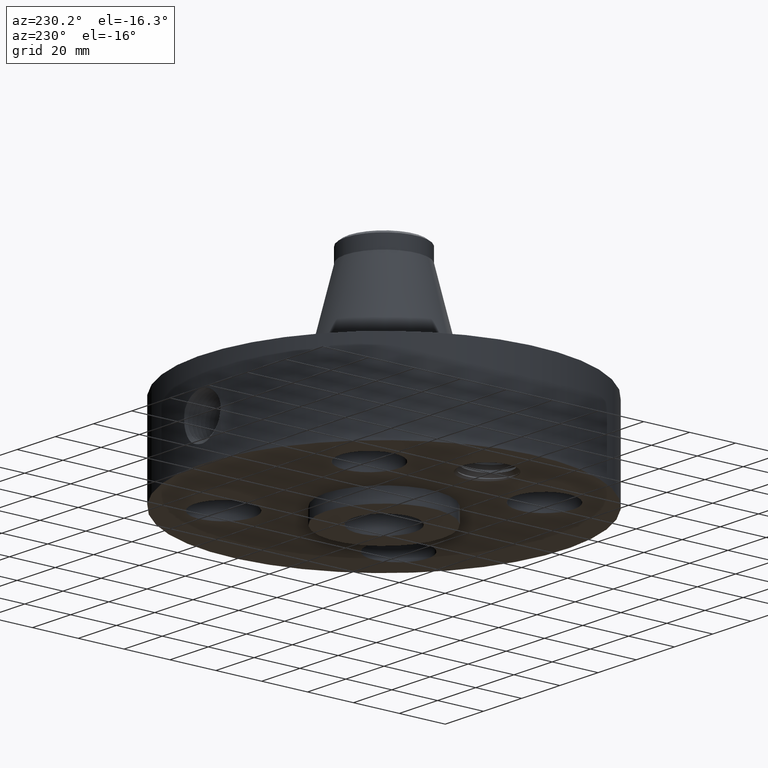
[diagram: clean part render]
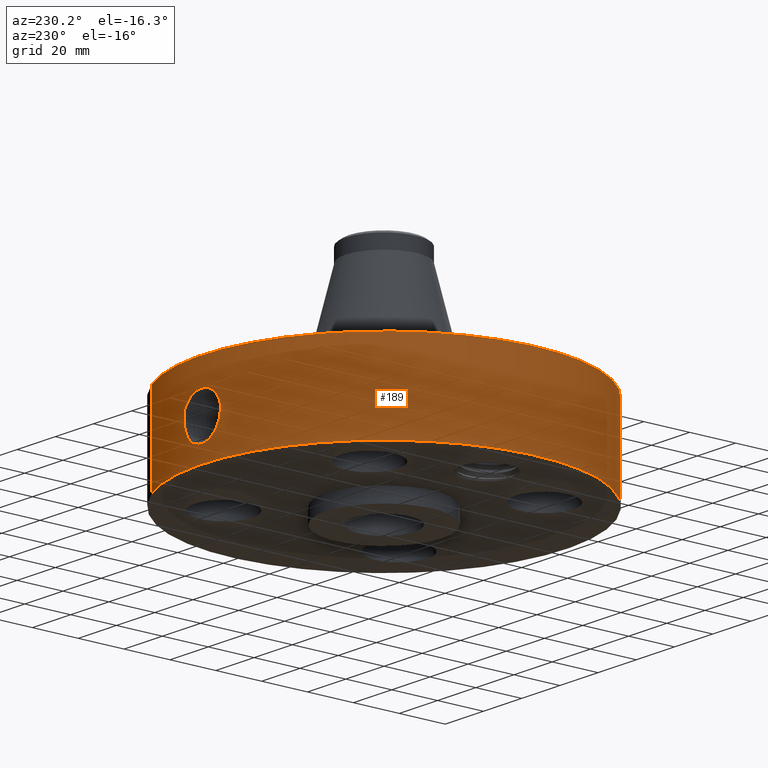
[diagram: same view with one face highlighted and labeled with its STEP entity id]
A machine part, auxiliary view. The second image highlights one B-rep face of the part: STEP entity #189.
In plain terms, the highlighted cylindrical surface (partial cylindrical patch) has radius 79.375 mm, axis along (0, 0, -1).
Its self-contained STEP definition (entity closure, byte-faithful):
#38=AXIS2_PLACEMENT_3D('Cylinder Axis2P3D',#35,#36,#37) ;
#42=AXIS2_PLACEMENT_3D('Circle Axis2P3D',#40,#41,$) ;
#58=AXIS2_PLACEMENT_3D('Circle Axis2P3D',#56,#57,$) ;
#35=CARTESIAN_POINT('Axis2P3D Location',(0.,0.,1.93500000001)) ;
#40=CARTESIAN_POINT('Axis2P3D Location',(0.,0.,0.250000000001)) ;
#44=CARTESIAN_POINT('Vertex',(-1.49820480814,-2.74244550592,0.250000000001)) ;
#46=CARTESIAN_POINT('Vertex',(1.49820480814,2.74244550592,0.250000000001)) ;
#49=CARTESIAN_POINT('Line Origine',(-1.49820480814,-2.74244550592,1.)) ;
#53=CARTESIAN_POINT('Vertex',(-1.49820480814,-2.74244550592,1.75000000001)) ;
#56=CARTESIAN_POINT('Axis2P3D Location',(0.,0.,1.75000000001)) ;
#60=CARTESIAN_POINT('Vertex',(1.49820480814,2.74244550592,1.75000000001)) ;
#63=CARTESIAN_POINT('Line Origine',(1.49820480814,2.74244550592,1.)) ;
#75=CARTESIAN_POINT('Control Point',(-0.169704717538,3.1203886471,1.25064240177)) ;
#76=CARTESIAN_POINT('Control Point',(-0.131083897928,3.12248906984,1.27181584559)) ;
#77=CARTESIAN_POINT('Control Point',(-0.0889131026666,3.12414682281,1.28658641962)) ;
#78=CARTESIAN_POINT('Control Point',(-0.0448186296726,3.1249897837,1.29402879621)) ;
#79=CARTESIAN_POINT('Control Point',(-0.000718090177373,3.12499991751,1.2941184944)) ;
#80=CARTESIAN_POINT('Vertex',(-0.169704717538,3.1203886471,1.25064240177)) ;
#82=CARTESIAN_POINT('Vertex',(-0.000717741474434,3.12499991759,1.29411850437)) ;
#86=CARTESIAN_POINT('Control Point',(-0.21482816623,3.11760707259,1.22122183656)) ;
#87=CARTESIAN_POINT('Control Point',(-0.200567304466,3.1185897605,1.23215449373)) ;
#88=CARTESIAN_POINT('Control Point',(-0.185468727421,3.11953130939,1.24199995501)) ;
#89=CARTESIAN_POINT('Control Point',(-0.169704717538,3.1203886471,1.25064240177)) ;
#90=CARTESIAN_POINT('Vertex',(-0.214819345972,3.11760742907,1.22122858909)) ;
#94=CARTESIAN_POINT('Control Point',(-0.34931949655,3.1054147693,0.885751642197)) ;
#95=CARTESIAN_POINT('Control Point',(-0.367742420814,3.10334242564,0.959887140037)) ;
#96=CARTESIAN_POINT('Control Point',(-0.36287222558,3.10371964554,1.04131335399)) ;
#97=CARTESIAN_POINT('Control Point',(-0.328329978577,3.10823670758,1.11718142735)) ;
#98=CARTESIAN_POINT('Control Point',(-0.277094139334,3.11331662871,1.17702051886)) ;
#99=CARTESIAN_POINT('Control Point',(-0.214819109822,3.11760769664,1.2212282695)) ;
#100=CARTESIAN_POINT('Vertex',(-0.349319928734,3.10541445456,0.885751308588)) ;
#104=CARTESIAN_POINT('Control Point',(-0.343314957303,3.10608432599,0.855638008858)) ;
#105=CARTESIAN_POINT('Control Point',(-0.345750264288,3.10581515194,0.86558377003)) ;
#106=CARTESIAN_POINT('Control Point',(-0.347754761927,3.10559078261,0.875635941715)) ;
#107=CARTESIAN_POINT('Control Point',(-0.349320760915,3.10541462708,0.885756640586)) ;
#108=CARTESIAN_POINT('Vertex',(-0.343316357086,3.10608454015,0.855643509776)) ;
#112=CARTESIAN_POINT('Control Point',(-0.0277254622303,3.12487700539,0.530955879279)) ;
#113=CARTESIAN_POINT('Control Point',(-0.0774180935227,3.12443610766,0.537426033597)) ;
#114=CARTESIAN_POINT('Control Point',(-0.125647766245,3.12302033035,0.553124237551)) ;
#115=CARTESIAN_POINT('Control Point',(-0.16986814197,3.12077102492,0.577404819863)) ;
#116=CARTESIAN_POINT('Control Point',(-0.247734860042,3.11560980489,0.639013433558)) ;
#117=CARTESIAN_POINT('Control Point',(-0.301618402069,3.11055308848,0.719926825299)) ;
#118=CARTESIAN_POINT('Control Point',(-0.322082740206,3.10840919462,0.763713133647)) ;
#119=CARTESIAN_POINT('Control Point',(-0.335978455053,3.10689523042,0.80933110659)) ;
#120=CARTESIAN_POINT('Control Point',(-0.343315844205,3.10608422796,0.855643688585)) ;
#121=CARTESIAN_POINT('Vertex',(-0.0277254622303,3.12487700539,0.530955879279)) ;
#125=CARTESIAN_POINT('Control Point',(-0.0277254622303,3.12487700539,0.530955879279)) ;
#126=CARTESIAN_POINT('Control Point',(-0.0184757577996,3.12495907337,0.530843344552)) ;
#127=CARTESIAN_POINT('Control Point',(-0.00922750854697,3.12500000807,0.530982960264)) ;
#128=CARTESIAN_POINT('Control Point',(2.72878353669E-006,3.12500000001,0.531374667804)) ;
#129=CARTESIAN_POINT('Vertex',(2.72878353562E-006,3.12500000001,0.531374667804)) ;
#133=CARTESIAN_POINT('Control Point',(0.196165446846,3.11883698156,0.580926701888)) ;
#134=CARTESIAN_POINT('Control Point',(0.13516603839,3.12267366052,0.550852314673)) ;
#135=CARTESIAN_POINT('Control Point',(0.0679576699102,3.12499994067,0.534258500681)) ;
#136=CARTESIAN_POINT('Control Point',(2.72878353669E-006,3.12500000001,0.531374667804)) ;
#137=CARTESIAN_POINT('Vertex',(0.196165446846,3.11883698156,0.580926701888)) ;
#141=CARTESIAN_POINT('Control Point',(0.208430673671,3.11804131697,0.587200737705)) ;
#142=CARTESIAN_POINT('Control Point',(0.204372491256,3.11831259295,0.585048398356)) ;
#143=CARTESIAN_POINT('Control Point',(0.200283249719,3.11857798417,0.582956892053)) ;
#144=CARTESIAN_POINT('Control Point',(0.196165446846,3.11883698156,0.580926701888)) ;
#145=CARTESIAN_POINT('Vertex',(0.208430673671,3.11804131697,0.587200737705)) ;
#149=CARTESIAN_POINT('Control Point',(0.208430673671,3.11804131697,0.587200737705)) ;
#150=CARTESIAN_POINT('Control Point',(0.260864506719,3.11453628993,0.621760934513)) ;
#151=CARTESIAN_POINT('Control Point',(0.305853128411,3.11042184836,0.667063833391)) ;
#152=CARTESIAN_POINT('Control Point',(0.341117340459,3.106504395,0.719732581912)) ;
#153=CARTESIAN_POINT('Control Point',(0.388122970506,3.10089437133,0.824758887672)) ;
#154=CARTESIAN_POINT('Control Point',(0.402021849758,3.09902386812,0.938522717947)) ;
#155=CARTESIAN_POINT('Control Point',(0.401434797635,3.09910244667,0.990960622328)) ;
#156=CARTESIAN_POINT('Control Point',(0.393890462863,3.10011096842,1.04301037029)) ;
#157=CARTESIAN_POINT('Control Point',(0.379413668188,3.10188173025,1.0934354383)) ;
#158=CARTESIAN_POINT('Vertex',(0.379413668188,3.10188173025,1.0934354383)) ;
#162=CARTESIAN_POINT('Control Point',(0.379413668188,3.10188173025,1.0934354383)) ;
#163=CARTESIAN_POINT('Control Point',(0.333043378901,3.10755361689,1.1749903991)) ;
#164=CARTESIAN_POINT('Control Point',(0.261045420756,3.11551492819,1.23977072284)) ;
#165=CARTESIAN_POINT('Control Point',(0.176679220024,3.12196183645,1.28008186734)) ;
#166=CARTESIAN_POINT('Control Point',(0.0874794905425,3.12500072397,1.29844239312)) ;
#167=CARTESIAN_POINT('Control Point',(-2.58579354939E-005,3.12499999991,1.29415298443)) ;
#168=CARTESIAN_POINT('Vertex',(-2.58579354925E-005,3.12499999991,1.29415298443)) ;
#172=CARTESIAN_POINT('Control Point',(-0.000717741460535,3.12499991759,1.29411850435)) ;
#173=CARTESIAN_POINT('Control Point',(-0.000371821821211,3.12499999704,1.29413602569)) ;
#174=CARTESIAN_POINT('Control Point',(-2.58579457552E-005,3.12499999991,1.29415298442)) ;
#36=DIRECTION('Axis2P3D Direction',(0.,0.,-0.0393700787402)) ;
#37=DIRECTION('Axis2P3D XDirection',(0.0188750212049,0.0345504945626,0.)) ;
#41=DIRECTION('Axis2P3D Direction',(0.,0.,-0.0393700787402)) ;
#50=DIRECTION('Vector Direction',(0.,0.,-0.0393700787402)) ;
#57=DIRECTION('Axis2P3D Direction',(0.,0.,-0.0393700787402)) ;
#64=DIRECTION('Vector Direction',(0.,0.,-0.0393700787402)) ;
#51=VECTOR('Line Direction',#50,0.0393700787402) ;
#65=VECTOR('Line Direction',#64,0.0393700787402) ;
#69=ORIENTED_EDGE('',*,*,#48,.F.) ;
#70=ORIENTED_EDGE('',*,*,#55,.T.) ;
#71=ORIENTED_EDGE('',*,*,#62,.T.) ;
#72=ORIENTED_EDGE('',*,*,#67,.F.) ;
#177=ORIENTED_EDGE('',*,*,#84,.F.) ;
#178=ORIENTED_EDGE('',*,*,#92,.F.) ;
#179=ORIENTED_EDGE('',*,*,#102,.F.) ;
#180=ORIENTED_EDGE('',*,*,#110,.F.) ;
#181=ORIENTED_EDGE('',*,*,#123,.F.) ;
#182=ORIENTED_EDGE('',*,*,#131,.T.) ;
#183=ORIENTED_EDGE('',*,*,#139,.F.) ;
#184=ORIENTED_EDGE('',*,*,#147,.F.) ;
#185=ORIENTED_EDGE('',*,*,#160,.T.) ;
#186=ORIENTED_EDGE('',*,*,#170,.T.) ;
#187=ORIENTED_EDGE('',*,*,#175,.F.) ;
#188=FACE_BOUND('',#176,.T.) ;
#189=ADVANCED_FACE('PartBody',(#73,#188),#39,.T.) ;
#74=B_SPLINE_CURVE_WITH_KNOTS('',4,(#75,#76,#77,#78,#79),.UNSPECIFIED.,.F.,.U.,(5,5),(0.,6.52343802552),.UNSPECIFIED.) ;
#85=B_SPLINE_CURVE_WITH_KNOTS('',3,(#86,#87,#88,#89),.UNSPECIFIED.,.F.,.U.,(4,4),(26.5413843778,28.538407147),.UNSPECIFIED.) ;
#93=B_SPLINE_CURVE_WITH_KNOTS('',5,(#94,#95,#96,#97,#98,#99),.UNSPECIFIED.,.F.,.U.,(6,6),(0.,14.2714475318),.UNSPECIFIED.) ;
#103=B_SPLINE_CURVE_WITH_KNOTS('',3,(#104,#105,#106,#107),.UNSPECIFIED.,.F.,.U.,(4,4),(11.3581884706,12.4955466898),.UNSPECIFIED.) ;
#111=B_SPLINE_CURVE_WITH_KNOTS('',5,(#112,#113,#114,#115,#116,#117,#118,#119,#120),.UNSPECIFIED.,.F.,.U.,(6,3,6),(0.,8.71048208825,17.494893511),.UNSPECIFIED.) ;
#124=B_SPLINE_CURVE_WITH_KNOTS('',3,(#125,#126,#127,#128),.UNSPECIFIED.,.F.,.U.,(4,4),(0.,0.964667702995),.UNSPECIFIED.) ;
#132=B_SPLINE_CURVE_WITH_KNOTS('',3,(#133,#134,#135,#136),.UNSPECIFIED.,.F.,.U.,(4,4),(0.,7.10208574365),.UNSPECIFIED.) ;
#140=B_SPLINE_CURVE_WITH_KNOTS('',3,(#141,#142,#143,#144),.UNSPECIFIED.,.F.,.U.,(4,4),(0.,0.479430700485),.UNSPECIFIED.) ;
#148=B_SPLINE_CURVE_WITH_KNOTS('',5,(#149,#150,#151,#152,#153,#154,#155,#156,#157),.UNSPECIFIED.,.F.,.U.,(6,3,6),(0.,10.9217337271,20.0515719972),.UNSPECIFIED.) ;
#161=B_SPLINE_CURVE_WITH_KNOTS('',5,(#162,#163,#164,#165,#166,#167),.UNSPECIFIED.,.F.,.U.,(6,6),(0.,16.3565571117),.UNSPECIFIED.) ;
#171=B_SPLINE_CURVE_WITH_KNOTS('',2,(#172,#173,#174),.UNSPECIFIED.,.F.,.U.,(3,3),(1.18594957712,1.2118166972),.UNSPECIFIED.) ;
#43=CIRCLE('generated circle',#42,3.12500000001) ;
#59=CIRCLE('generated circle',#58,3.12500000001) ;
#39=CYLINDRICAL_SURFACE('generated cylinder',#38,3.12500000001) ;
#48=EDGE_CURVE('',#45,#47,#43,.T.) ;
#55=EDGE_CURVE('',#45,#54,#52,.F.) ;
#62=EDGE_CURVE('',#54,#61,#59,.T.) ;
#67=EDGE_CURVE('',#47,#61,#66,.F.) ;
#84=EDGE_CURVE('',#81,#83,#74,.T.) ;
#92=EDGE_CURVE('',#91,#81,#85,.T.) ;
#102=EDGE_CURVE('',#101,#91,#93,.T.) ;
#110=EDGE_CURVE('',#109,#101,#103,.T.) ;
#123=EDGE_CURVE('',#122,#109,#111,.T.) ;
#131=EDGE_CURVE('',#122,#130,#124,.T.) ;
#139=EDGE_CURVE('',#138,#130,#132,.T.) ;
#147=EDGE_CURVE('',#146,#138,#140,.T.) ;
#160=EDGE_CURVE('',#146,#159,#148,.T.) ;
#170=EDGE_CURVE('',#159,#169,#161,.T.) ;
#175=EDGE_CURVE('',#83,#169,#171,.T.) ;
#68=EDGE_LOOP('',(#69,#70,#71,#72)) ;
#176=EDGE_LOOP('',(#177,#178,#179,#180,#181,#182,#183,#184,#185,#186,#187)) ;
#73=FACE_OUTER_BOUND('',#68,.T.) ;
#52=LINE('Line',#49,#51) ;
#66=LINE('Line',#63,#65) ;
#45=VERTEX_POINT('',#44) ;
#47=VERTEX_POINT('',#46) ;
#54=VERTEX_POINT('',#53) ;
#61=VERTEX_POINT('',#60) ;
#81=VERTEX_POINT('',#80) ;
#83=VERTEX_POINT('',#82) ;
#91=VERTEX_POINT('',#90) ;
#101=VERTEX_POINT('',#100) ;
#109=VERTEX_POINT('',#108) ;
#122=VERTEX_POINT('',#121) ;
#130=VERTEX_POINT('',#129) ;
#138=VERTEX_POINT('',#137) ;
#146=VERTEX_POINT('',#145) ;
#159=VERTEX_POINT('',#158) ;
#169=VERTEX_POINT('',#168) ;